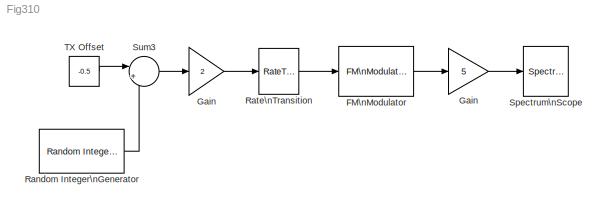
MODEL Fig310
KIND model
BLOCK [Reference] FM\nModulator  REF=commanapbnd3/FM\nModulator\nPassband
  Fc = 20000
  Kc = 500
  Ph = 0
  Ports = [1, 1]
  SID = 8
  SourceBlock = commanapbnd3/FM\nModulator\nPassband
  SourceType = FM Modulator Passband
BLOCK [Gain] Gain
  Gain = 2
  OutDataTypeStr = Inherit: Inherit via internal rule
  ParamDataTypeStr = Inherit: Inherit via internal rule
  SID = 2
  SaturateOnIntegerOverflow = off
BLOCK [Gain] Gain 
  Gain = 5
  OutDataTypeStr = Inherit: Inherit via internal rule
  ParamDataTypeStr = Inherit: Inherit via internal rule
  SID = 10
  SaturateOnIntegerOverflow = off
BLOCK [Reference] Random Integer\nGenerator  REF=commrandsrc2/Random Integer\nGenerator
  Ports = [0, 1]
  SID = 3
  SourceBlock = commrandsrc2/Random Integer\nGenerator
  SourceType = Random Integer Generator
  Ts = 1e-3
  frameBased = off
  mul = 2
  orient = on
  outDataType = double
  sampPerFrame = 50
  seed = randseed
BLOCK [RateTransition] Rate\nTransition
  OutPortSampleTime = 2e-6
  SID = 4
BLOCK [SpectrumAnalyzer] Spectrum\nScope
  Ports = [1]
  SID = 5
  ScopeSpecificationString = spbscopes.SpectrumAnalyzerBlockCfg('CurrentConfiguration', extmgr.ConfigurationSet(extmgr.Configuration('Core','General UI',true,'FigureColor',[0.313725490196078 0.313725490196078 0.313725490196078]),extmgr.Configuration('Core','Source UI',true),extmgr.Configuration('Sources','WiredSimulink',true),extmgr.Configuration('Sources','Simulink',false),extmgr.Configuration('Sources','File',false),extmgr....<+7141ch>
BLOCK [Sum] Sum3
  IconShape = round
  InputSameDT = off
  Inputs = |++
  OutDataTypeStr = Inherit: Inherit via internal rule
  Ports = [2, 1]
  SID = 6
  SaturateOnIntegerOverflow = off
BLOCK [Constant] TX Offset
  SID = 7
  Value = -0.5
LINE FM\nModulator:1 -> Gain :1
LINE Gain :1 -> Spectrum\nScope:1
LINE Gain:1 -> Rate\nTransition:1
LINE Random Integer\nGenerator:1 -> Sum3:2
LINE Rate\nTransition:1 -> FM\nModulator:1
LINE Sum3:1 -> Gain:1
LINE TX Offset:1 -> Sum3:1
